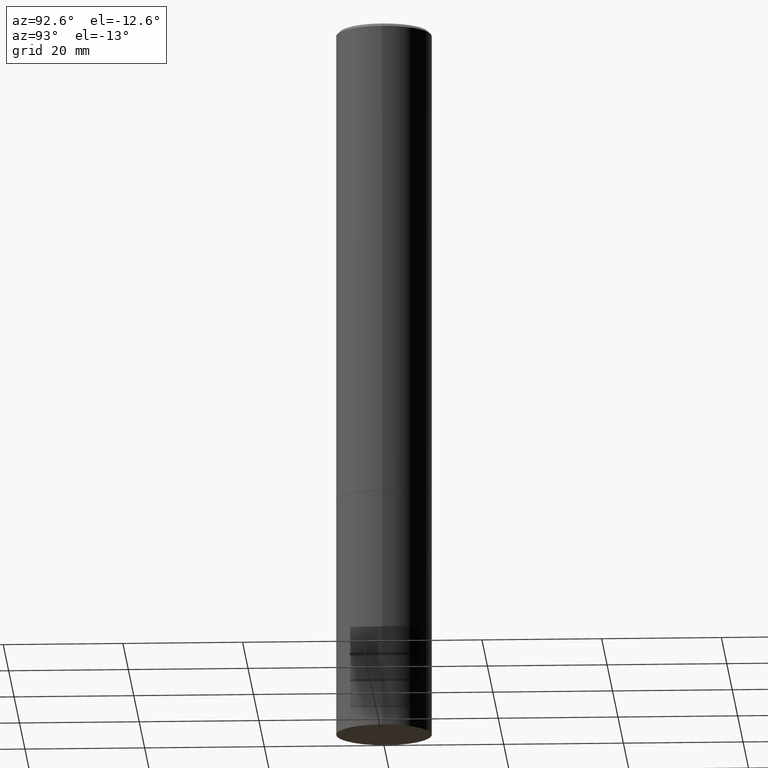
[diagram: clean part render]
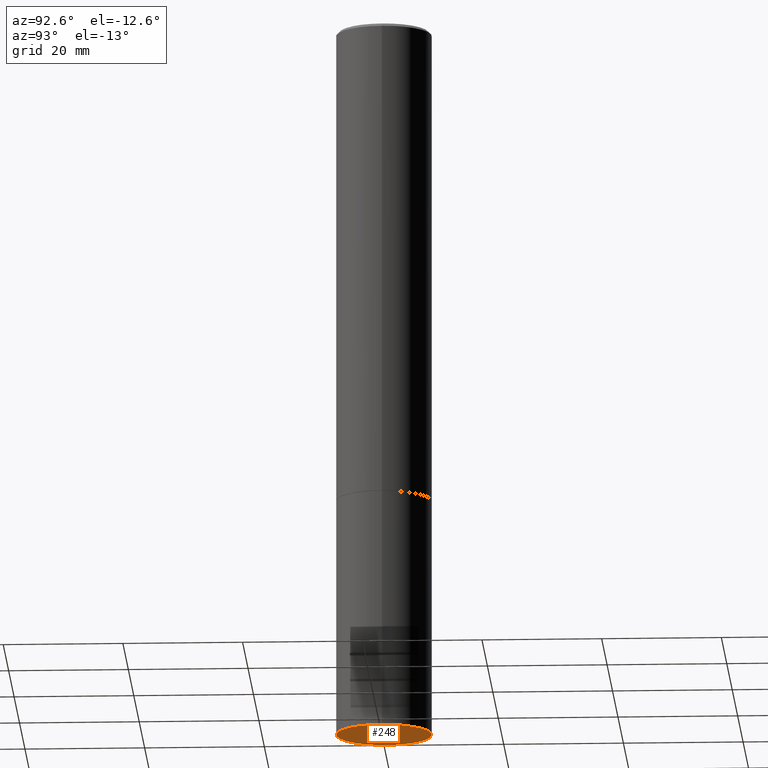
[diagram: same view with one face highlighted and labeled with its STEP entity id]
A machine part, auxiliary view. The second image highlights one B-rep face of the part: STEP entity #248.
In plain terms, the highlighted planar face has unit normal (0, -0, -1).
Its self-contained STEP definition (entity closure, byte-faithful):
#4 = DIRECTION ( 'NONE',  ( 1.000000000000000000, -6.982962677686263555E-15, 0.000000000000000000 ) ) ;
#15 = ORIENTED_EDGE ( 'NONE', *, *, #266, .F. ) ;
#20 = EDGE_CURVE ( 'NONE', #244, #212, #348, .T. ) ;
#27 = EDGE_LOOP ( 'NONE', ( #295, #15 ) ) ;
#34 = DIRECTION ( 'NONE',  ( 2.438088387897960049E-29, -3.491481338843145188E-15, -1.000000000000000000 ) ) ;
#60 = AXIS2_PLACEMENT_3D ( 'NONE', #170, #216, #4 ) ;
#64 = CARTESIAN_POINT ( 'NONE',  ( 2.199284095337404650E-15, 0.3149499999999834654, -4.724400000000001043 ) ) ;
#88 = CARTESIAN_POINT ( 'NONE',  ( -0.3149500000000000077, -1.150810768474902901E-14, -4.724400000000000155 ) ) ;
#119 = PLANE ( 'NONE',  #257 ) ;
#149 = CARTESIAN_POINT ( 'NONE',  ( 1.155337282794105951E-28, -1.649515443723055925E-14, -4.724400000000000155 ) ) ;
#170 = CARTESIAN_POINT ( 'NONE',  ( 1.155337282794105951E-28, -1.649515443723055925E-14, -4.724400000000000155 ) ) ;
#206 = DIRECTION ( 'NONE',  ( 1.000000000000000000, -6.982962677686263555E-15, 0.000000000000000000 ) ) ;
#212 = VERTEX_POINT ( 'NONE', #88 ) ;
#216 = DIRECTION ( 'NONE',  ( -2.445468806185136597E-29, 3.491481338843145583E-15, 1.000000000000000000 ) ) ;
#234 = CARTESIAN_POINT ( 'NONE',  ( 0.3149500000000000077, -1.869443853256784755E-14, -4.724400000000000155 ) ) ;
#244 = VERTEX_POINT ( 'NONE', #234 ) ;
#248 = ADVANCED_FACE ( 'NONE', ( #318 ), #119, .T. ) ;
#257 = AXIS2_PLACEMENT_3D ( 'NONE', #64, #34, #259 ) ;
#259 = DIRECTION ( 'NONE',  ( -1.000000000000000000, 6.982962677686265922E-15, -4.876176775795935793E-29 ) ) ;
#263 = AXIS2_PLACEMENT_3D ( 'NONE', #149, #291, #206 ) ;
#266 = EDGE_CURVE ( 'NONE', #212, #244, #364, .T. ) ;
#291 = DIRECTION ( 'NONE',  ( -2.445468806185136597E-29, 3.491481338843145583E-15, 1.000000000000000000 ) ) ;
#295 = ORIENTED_EDGE ( 'NONE', *, *, #20, .F. ) ;
#318 = FACE_OUTER_BOUND ( 'NONE', #27, .T. ) ;
#348 = CIRCLE ( 'NONE', #60, 0.3149500000000000077 ) ;
#364 = CIRCLE ( 'NONE', #263, 0.3149500000000000077 ) ;